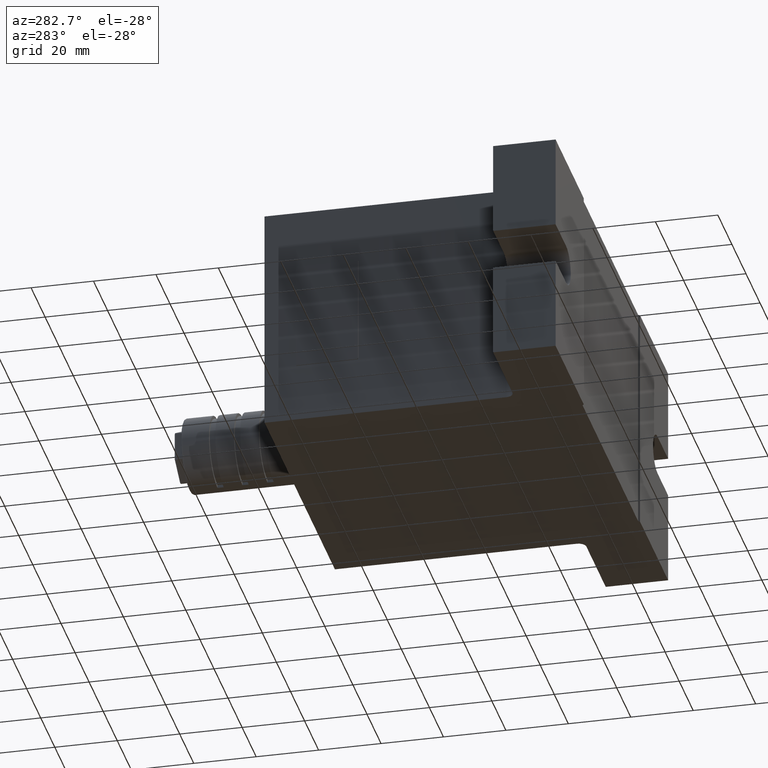
[diagram: clean part render]
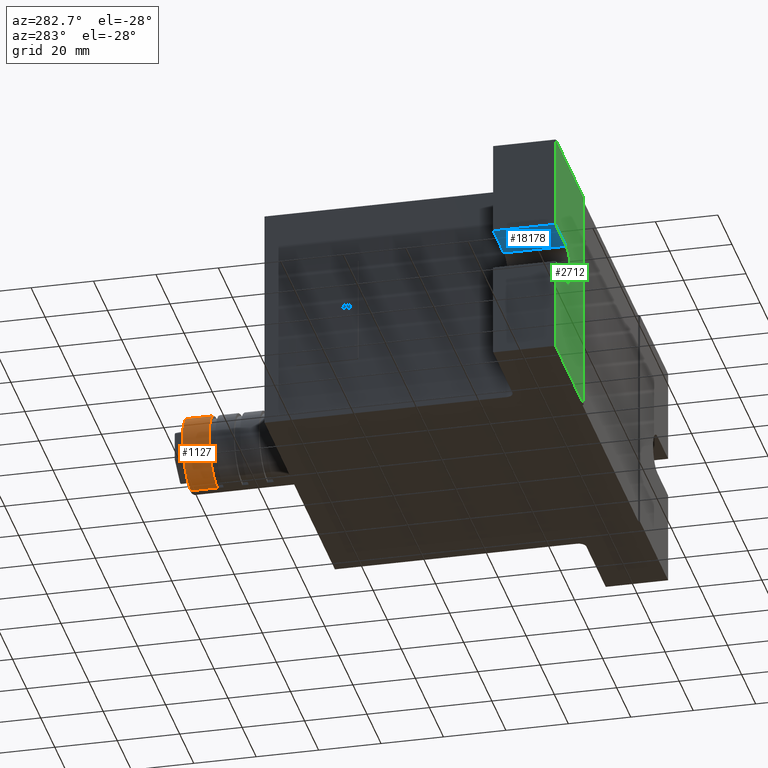
[diagram: same view with three faces highlighted in distinct colors, each labeled with its STEP entity id]
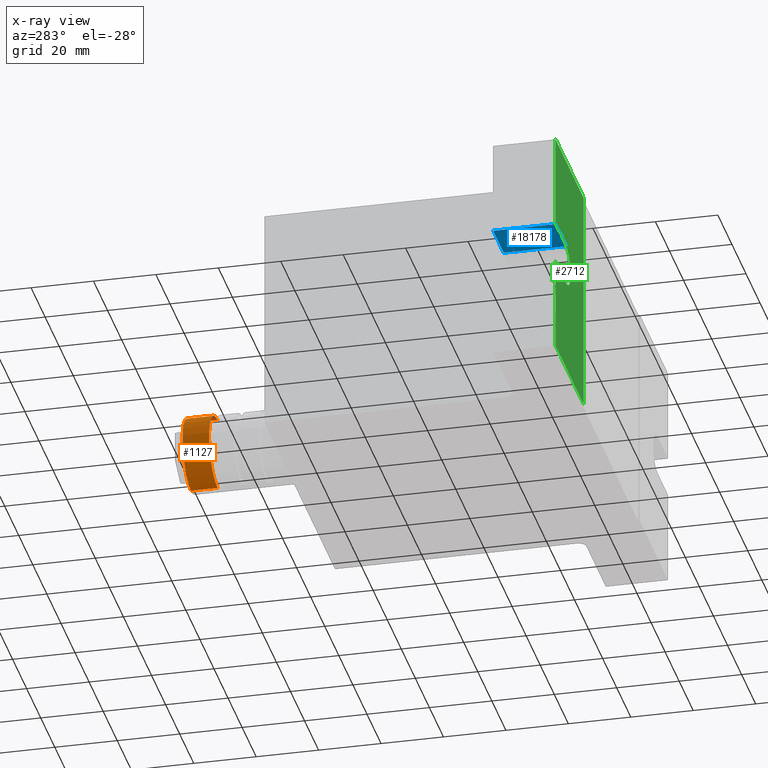
[diagram: x-ray of the same camera — body ghosted, the three highlighted faces saturated]
A machine part, auxiliary view with three faces highlighted in distinct colors.
The next image is the same camera in x-ray (body ghosted, the three faces saturated) — at least one of them is partly hidden behind the body in this view.
Their STEP definitions:

[orange] entity #1127 — the highlighted cylindrical surface (partial cylindrical patch) has radius 12 mm, axis along (0, -1, -0).
#335 = EDGE_CURVE ( 'NONE', #12510, #4662, #16936, .T. ) ;
#1111 = ORIENTED_EDGE ( 'NONE', *, *, #10257, .F. ) ;
#1127 = ADVANCED_FACE ( 'NONE', ( #5561 ), #13341, .T. ) ;
#2294 = VECTOR ( 'NONE', #9269, 1000.000000000000000 ) ;
#3430 = CARTESIAN_POINT ( 'NONE',  ( 34.00000000000000000, 93.00000000000000000, -12.00000000000000000 ) ) ;
#3607 = ORIENTED_EDGE ( 'NONE', *, *, #18126, .T. ) ;
#3788 = DIRECTION ( 'NONE',  ( 0.0000000000000000000, 0.0000000000000000000, -1.000000000000000000 ) ) ;
#3867 = DIRECTION ( 'NONE',  ( -0.0000000000000000000, -1.000000000000000000, -2.884981595602711200E-031 ) ) ;
#4030 = CIRCLE ( 'NONE', #23378, 12.00000000000000000 ) ;
#4662 = VERTEX_POINT ( 'NONE', #9156 ) ;
#4935 = VERTEX_POINT ( 'NONE', #13788 ) ;
#5561 = FACE_OUTER_BOUND ( 'NONE', #9036, .T. ) ;
#8502 = DIRECTION ( 'NONE',  ( 0.0000000000000000000, 0.0000000000000000000, -1.000000000000000000 ) ) ;
#9036 = EDGE_LOOP ( 'NONE', ( #3607, #9939, #10329, #1111 ) ) ;
#9156 = CARTESIAN_POINT ( 'NONE',  ( 33.99999999999999300, 83.99999999999998600, 12.00000000000000000 ) ) ;
#9269 = DIRECTION ( 'NONE',  ( 0.0000000000000000000, -1.000000000000000000, -2.884981595602711200E-031 ) ) ;
#9419 = CARTESIAN_POINT ( 'NONE',  ( 34.00000000000000000, 93.00000000000000000, 4.082971482100940000E-029 ) ) ;
#9476 = CARTESIAN_POINT ( 'NONE',  ( 33.99999999999999300, 83.99999999999998600, -12.00000000000000000 ) ) ;
#9939 = ORIENTED_EDGE ( 'NONE', *, *, #14608, .T. ) ;
#10257 = EDGE_CURVE ( 'NONE', #23987, #4662, #15263, .T. ) ;
#10329 = ORIENTED_EDGE ( 'NONE', *, *, #335, .T. ) ;
#11494 = DIRECTION ( 'NONE',  ( 0.0000000000000000000, 0.0000000000000000000, 1.000000000000000000 ) ) ;
#12510 = VERTEX_POINT ( 'NONE', #9476 ) ;
#13341 = CYLINDRICAL_SURFACE ( 'NONE', #20168, 12.00000000000000000 ) ;
#13788 = CARTESIAN_POINT ( 'NONE',  ( 34.00000000000000000, 92.50000000000000000, -12.00000000000000000 ) ) ;
#14559 = CARTESIAN_POINT ( 'NONE',  ( 34.00000000000000000, 93.00000000000000000, 12.00000000000000000 ) ) ;
#14608 = EDGE_CURVE ( 'NONE', #4935, #12510, #15415, .T. ) ;
#15109 = CARTESIAN_POINT ( 'NONE',  ( 34.00000000000000000, 92.50000000000000000, 12.00000000000000000 ) ) ;
#15156 = AXIS2_PLACEMENT_3D ( 'NONE', #15995, #23592, #8502 ) ;
#15263 = LINE ( 'NONE', #14559, #21182 ) ;
#15415 = LINE ( 'NONE', #3430, #2294 ) ;
#15995 = CARTESIAN_POINT ( 'NONE',  ( 33.99999999999999300, 83.99999999999998600, 4.930380657631323800E-029 ) ) ;
#16936 = CIRCLE ( 'NONE', #15156, 12.00000000000000000 ) ;
#18126 = EDGE_CURVE ( 'NONE', #23987, #4935, #4030, .T. ) ;
#18187 = DIRECTION ( 'NONE',  ( 0.0000000000000000000, -1.000000000000000000, -2.884981595602711200E-031 ) ) ;
#18799 = DIRECTION ( 'NONE',  ( 0.0000000000000000000, -1.000000000000000000, -2.884981595602711200E-031 ) ) ;
#20168 = AXIS2_PLACEMENT_3D ( 'NONE', #9419, #18799, #11494 ) ;
#21020 = CARTESIAN_POINT ( 'NONE',  ( 34.00000000000000000, 92.50000000000000000, 2.542227526591151300E-029 ) ) ;
#21182 = VECTOR ( 'NONE', #18187, 1000.000000000000000 ) ;
#23378 = AXIS2_PLACEMENT_3D ( 'NONE', #21020, #3867, #3788 ) ;
#23592 = DIRECTION ( 'NONE',  ( 0.0000000000000000000, 1.000000000000000000, 2.884981595602711200E-031 ) ) ;
#23987 = VERTEX_POINT ( 'NONE', #15109 ) ;

[blue] entity #18178 — the highlighted planar face has unit normal (-0, 0, 1).
#216 = ORIENTED_EDGE ( 'NONE', *, *, #1764, .F. ) ;
#536 = ORIENTED_EDGE ( 'NONE', *, *, #14656, .F. ) ;
#1017 = DIRECTION ( 'NONE',  ( 0.0000000000000000000, 1.000000000000000000, 8.801438384760299300E-031 ) ) ;
#1764 = EDGE_CURVE ( 'NONE', #24546, #17567, #19829, .T. ) ;
#1877 = DIRECTION ( 'NONE',  ( -1.156482317317889500E-016, 8.912949377146889300E-031, 1.000000000000000000 ) ) ;
#1962 = PLANE ( 'NONE',  #19585 ) ;
#4047 = LINE ( 'NONE', #18728, #4081 ) ;
#4081 = VECTOR ( 'NONE', #20583, 1000.000000000000000 ) ;
#4227 = LINE ( 'NONE', #22784, #9031 ) ;
#4364 = VECTOR ( 'NONE', #1017, 1000.000000000000000 ) ;
#6111 = LINE ( 'NONE', #21761, #21571 ) ;
#6204 = VERTEX_POINT ( 'NONE', #23589 ) ;
#9031 = VECTOR ( 'NONE', #14914, 1000.000000000000000 ) ;
#9910 = EDGE_CURVE ( 'NONE', #17994, #17567, #4227, .T. ) ;
#11209 = DIRECTION ( 'NONE',  ( 1.000000000000000000, 0.0000000000000000000, 1.156482317317889500E-016 ) ) ;
#12477 = CARTESIAN_POINT ( 'NONE',  ( -65.00000000000000000, -30.00000000000000000, 6.500000000000009800 ) ) ;
#13758 = ORIENTED_EDGE ( 'NONE', *, *, #9910, .T. ) ;
#14656 = EDGE_CURVE ( 'NONE', #6204, #24546, #4047, .T. ) ;
#14858 = EDGE_LOOP ( 'NONE', ( #13758, #216, #536, #23747 ) ) ;
#14914 = DIRECTION ( 'NONE',  ( 1.000000000000000000, 0.0000000000000000000, 1.156482317317889500E-016 ) ) ;
#15045 = CARTESIAN_POINT ( 'NONE',  ( -80.00000000000000000, -50.00000000000000000, 6.500000000000009800 ) ) ;
#15369 = FACE_OUTER_BOUND ( 'NONE', #14858, .T. ) ;
#16882 = CARTESIAN_POINT ( 'NONE',  ( -65.00000000000000000, -50.00000000000000000, 6.500000000000009800 ) ) ;
#16978 = EDGE_CURVE ( 'NONE', #6204, #17994, #6111, .T. ) ;
#17567 = VERTEX_POINT ( 'NONE', #12477 ) ;
#17994 = VERTEX_POINT ( 'NONE', #19852 ) ;
#18137 = CARTESIAN_POINT ( 'NONE',  ( -65.00000000000000000, -50.00000000000000000, 6.500000000000009800 ) ) ;
#18178 = ADVANCED_FACE ( 'NONE', ( #15369 ), #1962, .F. ) ;
#18728 = CARTESIAN_POINT ( 'NONE',  ( -80.00000000000000000, -50.00000000000000000, 6.500000000000009800 ) ) ;
#19585 = AXIS2_PLACEMENT_3D ( 'NONE', #15045, #1877, #11209 ) ;
#19829 = LINE ( 'NONE', #18137, #4364 ) ;
#19852 = CARTESIAN_POINT ( 'NONE',  ( -80.00000000000000000, -30.00000000000000000, 6.500000000000009800 ) ) ;
#20020 = DIRECTION ( 'NONE',  ( 0.0000000000000000000, 1.000000000000000000, 8.801438384760299300E-031 ) ) ;
#20583 = DIRECTION ( 'NONE',  ( 1.000000000000000000, 0.0000000000000000000, 1.156482317317889500E-016 ) ) ;
#21571 = VECTOR ( 'NONE', #20020, 1000.000000000000000 ) ;
#21761 = CARTESIAN_POINT ( 'NONE',  ( -80.00000000000000000, -50.00000000000000000, 6.500000000000009800 ) ) ;
#22784 = CARTESIAN_POINT ( 'NONE',  ( -80.00000000000000000, -30.00000000000000000, 6.500000000000009800 ) ) ;
#23589 = CARTESIAN_POINT ( 'NONE',  ( -80.00000000000000000, -50.00000000000000000, 6.500000000000009800 ) ) ;
#23747 = ORIENTED_EDGE ( 'NONE', *, *, #16978, .T. ) ;
#24546 = VERTEX_POINT ( 'NONE', #16882 ) ;

[green] entity #2712 — the highlighted planar face has unit normal (-0, 1, -0).
#433 = VERTEX_POINT ( 'NONE', #16648 ) ;
#927 = CARTESIAN_POINT ( 'NONE',  ( -80.00000000000000000, -50.00000000000000000, -36.50000000000007800 ) ) ;
#1033 = VERTEX_POINT ( 'NONE', #20239 ) ;
#1616 = EDGE_CURVE ( 'NONE', #4111, #433, #22802, .T. ) ;
#1691 = VERTEX_POINT ( 'NONE', #3880 ) ;
#1818 = CARTESIAN_POINT ( 'NONE',  ( -80.00000000000000000, -50.00000000000000000, -6.499999999999989300 ) ) ;
#2271 = VECTOR ( 'NONE', #16634, 1000.000000000000000 ) ;
#2712 = ADVANCED_FACE ( 'NONE', ( #9952 ), #4614, .F. ) ;
#3339 = DIRECTION ( 'NONE',  ( 1.627025617018336800E-030, 8.801438384760311500E-031, 1.000000000000000000 ) ) ;
#3726 = DIRECTION ( 'NONE',  ( -1.000000000000000000, 0.0000000000000000000, 6.938893903907218500E-016 ) ) ;
#3734 = ORIENTED_EDGE ( 'NONE', *, *, #6485, .T. ) ;
#3880 = CARTESIAN_POINT ( 'NONE',  ( -80.00000000000000000, -50.00000000000000000, 36.49999999999991500 ) ) ;
#4047 = LINE ( 'NONE', #18728, #4081 ) ;
#4081 = VECTOR ( 'NONE', #20583, 1000.000000000000000 ) ;
#4111 = VERTEX_POINT ( 'NONE', #927 ) ;
#4614 = PLANE ( 'NONE',  #5047 ) ;
#4915 = ORIENTED_EDGE ( 'NONE', *, *, #14724, .F. ) ;
#5042 = LINE ( 'NONE', #14261, #8011 ) ;
#5047 = AXIS2_PLACEMENT_3D ( 'NONE', #23711, #9138, #20524 ) ;
#5269 = CARTESIAN_POINT ( 'NONE',  ( -80.00000000000000000, -50.00000000000000000, 36.49999999999991500 ) ) ;
#6204 = VERTEX_POINT ( 'NONE', #23589 ) ;
#6485 = EDGE_CURVE ( 'NONE', #1033, #14195, #9920, .T. ) ;
#7117 = CARTESIAN_POINT ( 'NONE',  ( -39.99999999999999300, -50.00000000000000000, -36.50000000000000000 ) ) ;
#7206 = DIRECTION ( 'NONE',  ( -1.627025617018336800E-030, -8.801438384760311500E-031, -1.000000000000000000 ) ) ;
#7266 = CARTESIAN_POINT ( 'NONE',  ( -39.99999999999999300, -50.00000000000000000, 36.50000000000000000 ) ) ;
#7583 = LINE ( 'NONE', #5269, #23609 ) ;
#7942 = EDGE_LOOP ( 'NONE', ( #10057, #3734, #18811, #12429, #13751, #4915, #12072, #10459 ) ) ;
#8011 = VECTOR ( 'NONE', #12028, 1000.000000000000000 ) ;
#8106 = DIRECTION ( 'NONE',  ( 0.0000000000000000000, 1.000000000000000000, 8.801438384760299300E-031 ) ) ;
#8430 = EDGE_CURVE ( 'NONE', #24546, #1033, #17266, .T. ) ;
#8897 = VERTEX_POINT ( 'NONE', #7266 ) ;
#9138 = DIRECTION ( 'NONE',  ( -2.864033143722702200E-060, 1.000000000000000000, -8.801438384760311500E-031 ) ) ;
#9580 = CARTESIAN_POINT ( 'NONE',  ( -80.00000000000000000, -50.00000000000000000, 36.49999999999991500 ) ) ;
#9920 = LINE ( 'NONE', #1818, #24474 ) ;
#9938 = DIRECTION ( 'NONE',  ( 0.0000000000000000000, 0.0000000000000000000, -1.000000000000000000 ) ) ;
#9952 = FACE_OUTER_BOUND ( 'NONE', #7942, .T. ) ;
#10057 = ORIENTED_EDGE ( 'NONE', *, *, #8430, .T. ) ;
#10459 = ORIENTED_EDGE ( 'NONE', *, *, #14656, .T. ) ;
#11282 = CARTESIAN_POINT ( 'NONE',  ( -80.00000000000000000, -50.00000000000000000, -6.499999999999989300 ) ) ;
#11879 = AXIS2_PLACEMENT_3D ( 'NONE', #21333, #8106, #9938 ) ;
#12028 = DIRECTION ( 'NONE',  ( -1.627025617018336800E-030, -8.801438384760311500E-031, -1.000000000000000000 ) ) ;
#12072 = ORIENTED_EDGE ( 'NONE', *, *, #16193, .T. ) ;
#12360 = LINE ( 'NONE', #7117, #19193 ) ;
#12429 = ORIENTED_EDGE ( 'NONE', *, *, #1616, .T. ) ;
#12816 = CARTESIAN_POINT ( 'NONE',  ( -80.00000000000000000, -50.00000000000000000, -36.50000000000007800 ) ) ;
#13232 = EDGE_CURVE ( 'NONE', #433, #8897, #12360, .T. ) ;
#13313 = LINE ( 'NONE', #9580, #18346 ) ;
#13751 = ORIENTED_EDGE ( 'NONE', *, *, #13232, .T. ) ;
#14195 = VERTEX_POINT ( 'NONE', #11282 ) ;
#14261 = CARTESIAN_POINT ( 'NONE',  ( -80.00000000000000000, -50.00000000000000000, 36.49999999999991500 ) ) ;
#14656 = EDGE_CURVE ( 'NONE', #6204, #24546, #4047, .T. ) ;
#14724 = EDGE_CURVE ( 'NONE', #1691, #8897, #13313, .T. ) ;
#16193 = EDGE_CURVE ( 'NONE', #1691, #6204, #7583, .T. ) ;
#16634 = DIRECTION ( 'NONE',  ( 1.000000000000000000, 0.0000000000000000000, 1.627025617018336800E-030 ) ) ;
#16648 = CARTESIAN_POINT ( 'NONE',  ( -39.99999999999999300, -50.00000000000000000, -36.50000000000000000 ) ) ;
#16882 = CARTESIAN_POINT ( 'NONE',  ( -65.00000000000000000, -50.00000000000000000, 6.500000000000009800 ) ) ;
#17266 = CIRCLE ( 'NONE', #11879, 6.500000000000000000 ) ;
#17476 = DIRECTION ( 'NONE',  ( 1.000000000000000000, 0.0000000000000000000, 1.627025617018336800E-030 ) ) ;
#18346 = VECTOR ( 'NONE', #17476, 1000.000000000000000 ) ;
#18728 = CARTESIAN_POINT ( 'NONE',  ( -80.00000000000000000, -50.00000000000000000, 6.500000000000009800 ) ) ;
#18811 = ORIENTED_EDGE ( 'NONE', *, *, #21847, .T. ) ;
#19193 = VECTOR ( 'NONE', #3339, 1000.000000000000000 ) ;
#20239 = CARTESIAN_POINT ( 'NONE',  ( -65.00000000000000000, -50.00000000000000000, -6.499999999999989300 ) ) ;
#20524 = DIRECTION ( 'NONE',  ( 1.627025617018336800E-030, 8.801438384760311500E-031, 1.000000000000000000 ) ) ;
#20583 = DIRECTION ( 'NONE',  ( 1.000000000000000000, 0.0000000000000000000, 1.156482317317889500E-016 ) ) ;
#21333 = CARTESIAN_POINT ( 'NONE',  ( -65.00000000000000000, -50.00000000000000000, -4.592273826834067800E-015 ) ) ;
#21847 = EDGE_CURVE ( 'NONE', #14195, #4111, #5042, .T. ) ;
#22802 = LINE ( 'NONE', #12816, #2271 ) ;
#23589 = CARTESIAN_POINT ( 'NONE',  ( -80.00000000000000000, -50.00000000000000000, 6.500000000000009800 ) ) ;
#23609 = VECTOR ( 'NONE', #7206, 1000.000000000000000 ) ;
#23711 = CARTESIAN_POINT ( 'NONE',  ( -80.00000000000000000, -50.00000000000000000, 36.49999999999991500 ) ) ;
#24474 = VECTOR ( 'NONE', #3726, 1000.000000000000000 ) ;
#24546 = VERTEX_POINT ( 'NONE', #16882 ) ;